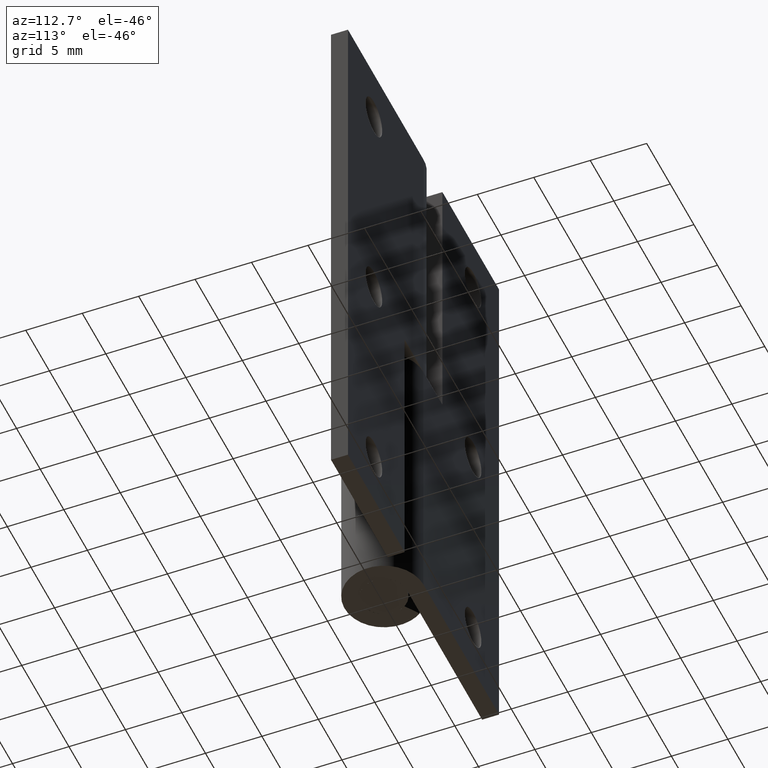
[diagram: clean part render]
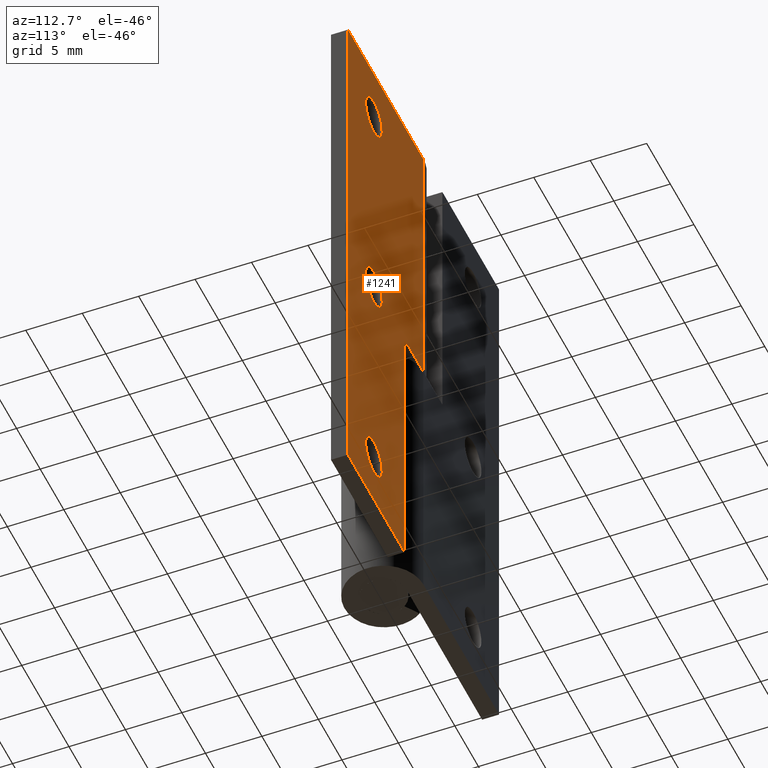
[diagram: same view with one face highlighted and labeled with its STEP entity id]
A machine part, auxiliary view. The second image highlights one B-rep face of the part: STEP entity #1241.
In plain terms, the highlighted face is a freeform B-spline surface patch.
Its self-contained STEP definition (entity closure, byte-faithful):
#366=CARTESIAN_POINT('',(8.755394665949826,3.499999999957235,44.862696582149802));
#367=VERTEX_POINT('',#366);
#373=CARTESIAN_POINT('',(10.500000000000000,3.500000000000000,46.750000000000000));
#374=VERTEX_POINT('',#373);
#375=CARTESIAN_POINT('',(8.755394665949826,3.499999999957235,44.862696582149788));
#376=CARTESIAN_POINT('',(8.750000000000002,3.500000000000000,44.931242312411968));
#377=CARTESIAN_POINT('',(8.750000000000000,3.500000000000000,45.0));
#378=CARTESIAN_POINT('',(8.750000000000000,3.500000000000000,46.749999999999993));
#379=CARTESIAN_POINT('',(10.500000000000000,3.500000000000000,46.750000000000000));
#387=(BOUNDED_CURVE()B_SPLINE_CURVE(2,(#375,#376,#377,#378,#379),.UNSPECIFIED.,.F.,.U.)B_SPLINE_CURVE_WITH_KNOTS((3,2,3),(0.736331300569268,0.750000000000000,1.0),.UNSPECIFIED.)CURVE()GEOMETRIC_REPRESENTATION_ITEM()RATIONAL_B_SPLINE_CURVE((0.969723356039297,0.983986122506957,1.0,0.707106781186547,1.0))REPRESENTATION_ITEM(''));
#388=EDGE_CURVE('',#367,#374,#387,.T.);
#390=CARTESIAN_POINT('',(12.244605334050179,3.499999999957234,45.137303417850198));
#391=VERTEX_POINT('',#390);
#392=CARTESIAN_POINT('',(10.500000000000000,3.500000000000000,46.750000000000000));
#393=CARTESIAN_POINT('',(12.117683359800790,3.500000000000000,46.749999999999986));
#394=CARTESIAN_POINT('',(12.244605334050174,3.499999999957234,45.137303417850205));
#402=(BOUNDED_CURVE()B_SPLINE_CURVE(2,(#392,#393,#394),.UNSPECIFIED.,.F.,.U.)B_SPLINE_CURVE_WITH_KNOTS((3,3),(0.0,0.236331300569268),.UNSPECIFIED.)CURVE()GEOMETRIC_REPRESENTATION_ITEM()RATIONAL_B_SPLINE_CURVE((1.0,0.723120658679590,0.969723356039298))REPRESENTATION_ITEM(''));
#403=EDGE_CURVE('',#374,#391,#402,.T.);
#449=CARTESIAN_POINT('',(10.500000000000000,3.500000000000000,43.250000000000000));
#450=VERTEX_POINT('',#449);
#451=CARTESIAN_POINT('',(12.244605334050183,3.499999999957234,45.137303417850198));
#452=CARTESIAN_POINT('',(12.250000000000000,3.500000000000000,45.068757687588047));
#453=CARTESIAN_POINT('',(12.250000000000000,3.500000000000000,45.0));
#454=CARTESIAN_POINT('',(12.249999999999996,3.500000000000000,43.250000000000000));
#455=CARTESIAN_POINT('',(10.500000000000000,3.500000000000000,43.250000000000000));
#463=(BOUNDED_CURVE()B_SPLINE_CURVE(2,(#451,#452,#453,#454,#455),.UNSPECIFIED.,.F.,.U.)B_SPLINE_CURVE_WITH_KNOTS((3,2,3),(0.236331300569268,0.250000000000000,0.500000000000000),.UNSPECIFIED.)CURVE()GEOMETRIC_REPRESENTATION_ITEM()RATIONAL_B_SPLINE_CURVE((0.969723356039299,0.983986122506957,1.0,0.707106781186547,1.0))REPRESENTATION_ITEM(''));
#464=EDGE_CURVE('',#391,#450,#463,.T.);
#466=CARTESIAN_POINT('',(10.500000000000000,3.500000000000000,43.250000000000000));
#467=CARTESIAN_POINT('',(8.882316640199210,3.500000000000000,43.250000000000000));
#468=CARTESIAN_POINT('',(8.755394665949826,3.499999999957235,44.862696582149795));
#476=(BOUNDED_CURVE()B_SPLINE_CURVE(2,(#466,#467,#468),.UNSPECIFIED.,.F.,.U.)B_SPLINE_CURVE_WITH_KNOTS((3,3),(0.500000000000000,0.736331300569268),.UNSPECIFIED.)CURVE()GEOMETRIC_REPRESENTATION_ITEM()RATIONAL_B_SPLINE_CURVE((1.0,0.723120658679590,0.969723356039298))REPRESENTATION_ITEM(''));
#477=EDGE_CURVE('',#450,#367,#476,.T.);
#548=CARTESIAN_POINT('',(8.755394665949826,3.499999999957235,24.862696582149798));
#549=VERTEX_POINT('',#548);
#555=CARTESIAN_POINT('',(10.500000000000000,3.500000000000000,26.750000000000000));
#556=VERTEX_POINT('',#555);
#557=CARTESIAN_POINT('',(8.755394665949826,3.499999999957235,24.862696582149795));
#558=CARTESIAN_POINT('',(8.750000000000002,3.500000000000000,24.931242312411953));
#559=CARTESIAN_POINT('',(8.750000000000000,3.500000000000000,25.0));
#560=CARTESIAN_POINT('',(8.750000000000000,3.500000000000000,26.750000000000007));
#561=CARTESIAN_POINT('',(10.500000000000000,3.500000000000000,26.750000000000000));
#569=(BOUNDED_CURVE()B_SPLINE_CURVE(2,(#557,#558,#559,#560,#561),.UNSPECIFIED.,.F.,.U.)B_SPLINE_CURVE_WITH_KNOTS((3,2,3),(0.736331300569268,0.750000000000000,1.0),.UNSPECIFIED.)CURVE()GEOMETRIC_REPRESENTATION_ITEM()RATIONAL_B_SPLINE_CURVE((0.969723356039297,0.983986122506957,1.0,0.707106781186547,1.0))REPRESENTATION_ITEM(''));
#570=EDGE_CURVE('',#549,#556,#569,.T.);
#572=CARTESIAN_POINT('',(12.244605334050179,3.499999999957235,25.137303417850209));
#573=VERTEX_POINT('',#572);
#574=CARTESIAN_POINT('',(10.500000000000000,3.500000000000000,26.750000000000000));
#575=CARTESIAN_POINT('',(12.117683359800782,3.500000000000000,26.750000000000004));
#576=CARTESIAN_POINT('',(12.244605334050174,3.499999999957235,25.137303417850209));
#584=(BOUNDED_CURVE()B_SPLINE_CURVE(2,(#574,#575,#576),.UNSPECIFIED.,.F.,.U.)B_SPLINE_CURVE_WITH_KNOTS((3,3),(0.0,0.236331300569267),.UNSPECIFIED.)CURVE()GEOMETRIC_REPRESENTATION_ITEM()RATIONAL_B_SPLINE_CURVE((1.0,0.723120658679591,0.969723356039297))REPRESENTATION_ITEM(''));
#585=EDGE_CURVE('',#556,#573,#584,.T.);
#631=CARTESIAN_POINT('',(10.500000000000000,3.500000000000000,23.250000000000000));
#632=VERTEX_POINT('',#631);
#633=CARTESIAN_POINT('',(12.244605334050176,3.499999999957235,25.137303417850209));
#634=CARTESIAN_POINT('',(12.250000000000005,3.500000000000000,25.068757687588050));
#635=CARTESIAN_POINT('',(12.250000000000000,3.500000000000000,25.0));
#636=CARTESIAN_POINT('',(12.249999999999996,3.500000000000000,23.250000000000004));
#637=CARTESIAN_POINT('',(10.500000000000000,3.500000000000000,23.250000000000000));
#645=(BOUNDED_CURVE()B_SPLINE_CURVE(2,(#633,#634,#635,#636,#637),.UNSPECIFIED.,.F.,.U.)B_SPLINE_CURVE_WITH_KNOTS((3,2,3),(0.236331300569267,0.250000000000000,0.500000000000000),.UNSPECIFIED.)CURVE()GEOMETRIC_REPRESENTATION_ITEM()RATIONAL_B_SPLINE_CURVE((0.969723356039297,0.983986122506956,1.0,0.707106781186547,1.0))REPRESENTATION_ITEM(''));
#646=EDGE_CURVE('',#573,#632,#645,.T.);
#648=CARTESIAN_POINT('',(10.500000000000000,3.500000000000000,23.250000000000000));
#649=CARTESIAN_POINT('',(8.882316640199210,3.500000000000000,23.250000000000007));
#650=CARTESIAN_POINT('',(8.755394665949826,3.499999999957235,24.862696582149798));
#658=(BOUNDED_CURVE()B_SPLINE_CURVE(2,(#648,#649,#650),.UNSPECIFIED.,.F.,.U.)B_SPLINE_CURVE_WITH_KNOTS((3,3),(0.500000000000000,0.736331300569268),.UNSPECIFIED.)CURVE()GEOMETRIC_REPRESENTATION_ITEM()RATIONAL_B_SPLINE_CURVE((1.0,0.723120658679590,0.969723356039298))REPRESENTATION_ITEM(''));
#659=EDGE_CURVE('',#632,#549,#658,.T.);
#730=CARTESIAN_POINT('',(8.755394665949824,3.499999999957235,4.862696582149794));
#731=VERTEX_POINT('',#730);
#737=CARTESIAN_POINT('',(10.500000000000000,3.500000000000000,6.750000000000000));
#738=VERTEX_POINT('',#737);
#739=CARTESIAN_POINT('',(8.755394665949824,3.499999999957236,4.862696582149794));
#740=CARTESIAN_POINT('',(8.750000000000000,3.500000000000000,4.931242312411956));
#741=CARTESIAN_POINT('',(8.750000000000000,3.500000000000000,5.0));
#742=CARTESIAN_POINT('',(8.750000000000000,3.500000000000000,6.750000000000000));
#743=CARTESIAN_POINT('',(10.500000000000000,3.500000000000000,6.750000000000000));
#751=(BOUNDED_CURVE()B_SPLINE_CURVE(2,(#739,#740,#741,#742,#743),.UNSPECIFIED.,.F.,.U.)B_SPLINE_CURVE_WITH_KNOTS((3,2,3),(0.736331300569267,0.750000000000000,1.0),.UNSPECIFIED.)CURVE()GEOMETRIC_REPRESENTATION_ITEM()RATIONAL_B_SPLINE_CURVE((0.969723356039296,0.983986122506956,1.0,0.707106781186547,1.0))REPRESENTATION_ITEM(''));
#752=EDGE_CURVE('',#731,#738,#751,.T.);
#754=CARTESIAN_POINT('',(12.244605334050179,3.499999999957236,5.137303417850206));
#755=VERTEX_POINT('',#754);
#756=CARTESIAN_POINT('',(10.500000000000000,3.500000000000000,6.750000000000000));
#757=CARTESIAN_POINT('',(12.117683359800777,3.500000000000000,6.749999999999999));
#758=CARTESIAN_POINT('',(12.244605334050178,3.499999999957236,5.137303417850206));
#766=(BOUNDED_CURVE()B_SPLINE_CURVE(2,(#756,#757,#758),.UNSPECIFIED.,.F.,.U.)B_SPLINE_CURVE_WITH_KNOTS((3,3),(0.0,0.236331300569267),.UNSPECIFIED.)CURVE()GEOMETRIC_REPRESENTATION_ITEM()RATIONAL_B_SPLINE_CURVE((1.0,0.723120658679591,0.969723356039297))REPRESENTATION_ITEM(''));
#767=EDGE_CURVE('',#738,#755,#766,.T.);
#813=CARTESIAN_POINT('',(10.500000000000000,3.500000000000000,3.250000000000000));
#814=VERTEX_POINT('',#813);
#815=CARTESIAN_POINT('',(12.244605334050179,3.499999999957236,5.137303417850206));
#816=CARTESIAN_POINT('',(12.249999999999996,3.500000000000000,5.068757687588043));
#817=CARTESIAN_POINT('',(12.250000000000000,3.500000000000000,5.0));
#818=CARTESIAN_POINT('',(12.249999999999996,3.500000000000000,3.250000000000000));
#819=CARTESIAN_POINT('',(10.500000000000000,3.500000000000000,3.250000000000000));
#827=(BOUNDED_CURVE()B_SPLINE_CURVE(2,(#815,#816,#817,#818,#819),.UNSPECIFIED.,.F.,.U.)B_SPLINE_CURVE_WITH_KNOTS((3,2,3),(0.236331300569267,0.250000000000000,0.500000000000000),.UNSPECIFIED.)CURVE()GEOMETRIC_REPRESENTATION_ITEM()RATIONAL_B_SPLINE_CURVE((0.969723356039296,0.983986122506956,1.0,0.707106781186547,1.0))REPRESENTATION_ITEM(''));
#828=EDGE_CURVE('',#755,#814,#827,.T.);
#830=CARTESIAN_POINT('',(10.500000000000000,3.500000000000000,3.250000000000000));
#831=CARTESIAN_POINT('',(8.882316640199210,3.500000000000000,3.250000000000001));
#832=CARTESIAN_POINT('',(8.755394665949824,3.499999999957235,4.862696582149795));
#840=(BOUNDED_CURVE()B_SPLINE_CURVE(2,(#830,#831,#832),.UNSPECIFIED.,.F.,.U.)B_SPLINE_CURVE_WITH_KNOTS((3,3),(0.500000000000000,0.736331300569268),.UNSPECIFIED.)CURVE()GEOMETRIC_REPRESENTATION_ITEM()RATIONAL_B_SPLINE_CURVE((1.0,0.723120658679590,0.969723356039298))REPRESENTATION_ITEM(''));
#841=EDGE_CURVE('',#814,#731,#840,.T.);
#874=CARTESIAN_POINT('',(4.0,3.499999999999950,25.0));
#875=VERTEX_POINT('',#874);
#881=CARTESIAN_POINT('',(4.0,3.500000000000000,0.0));
#882=VERTEX_POINT('',#881);
#883=CARTESIAN_POINT('',(4.0,3.499999999999950,25.0));
#884=CARTESIAN_POINT('',(4.0,3.500000000000000,0.0));
#885=QUASI_UNIFORM_CURVE('',1,(#883,#884),.UNSPECIFIED.,.F.,.U.);
#886=EDGE_CURVE('',#875,#882,#885,.T.);
#903=CARTESIAN_POINT('',(0.0,3.499999999999950,25.0));
#904=VERTEX_POINT('',#903);
#924=CARTESIAN_POINT('',(0.0,3.499999999999950,25.0));
#925=CARTESIAN_POINT('',(4.0,3.499999999999950,25.0));
#926=QUASI_UNIFORM_CURVE('',1,(#924,#925),.UNSPECIFIED.,.F.,.U.);
#927=EDGE_CURVE('',#904,#875,#926,.T.);
#973=CARTESIAN_POINT('',(0.0,3.500000000000000,50.0));
#974=VERTEX_POINT('',#973);
#1029=CARTESIAN_POINT('',(16.0,3.500000000000000,50.0));
#1030=VERTEX_POINT('',#1029);
#1036=CARTESIAN_POINT('',(0.0,3.500000000000000,50.0));
#1037=CARTESIAN_POINT('',(16.0,3.500000000000000,50.0));
#1038=QUASI_UNIFORM_CURVE('',1,(#1036,#1037),.UNSPECIFIED.,.F.,.U.);
#1039=EDGE_CURVE('',#974,#1030,#1038,.T.);
#1057=CARTESIAN_POINT('',(16.0,3.500000000000000,0.0));
#1058=VERTEX_POINT('',#1057);
#1064=CARTESIAN_POINT('',(16.0,3.500000000000000,0.0));
#1065=CARTESIAN_POINT('',(16.0,3.500000000000000,50.0));
#1066=QUASI_UNIFORM_CURVE('',1,(#1064,#1065),.UNSPECIFIED.,.F.,.U.);
#1067=EDGE_CURVE('',#1058,#1030,#1066,.T.);
#1083=CARTESIAN_POINT('',(4.0,3.500000000000000,0.0));
#1084=CARTESIAN_POINT('',(16.0,3.500000000000000,0.0));
#1085=QUASI_UNIFORM_CURVE('',1,(#1083,#1084),.UNSPECIFIED.,.F.,.U.);
#1086=EDGE_CURVE('',#882,#1058,#1085,.T.);
#1170=CARTESIAN_POINT('',(0.0,3.499999999999950,25.0));
#1171=CARTESIAN_POINT('',(0.0,3.500000000000000,50.0));
#1172=QUASI_UNIFORM_CURVE('',1,(#1170,#1171),.UNSPECIFIED.,.F.,.U.);
#1173=EDGE_CURVE('',#904,#974,#1172,.T.);
#1210=CARTESIAN_POINT('',(-0.799199968988895,3.500000000000000,52.497499903090286));
#1211=CARTESIAN_POINT('',(-0.799199968988895,3.500000000000000,-2.497501244194806));
#1212=CARTESIAN_POINT('',(16.799200398142339,3.500000000000000,52.497499903090301));
#1213=CARTESIAN_POINT('',(16.799200398142339,3.500000000000000,-2.497501244194806));
#1214=B_SPLINE_SURFACE_WITH_KNOTS('',1,1,((#1210,#1212),(#1211,#1213)),.UNSPECIFIED.,.F.,.F.,.U.,(2,2),(2,2),(0.0,54.995001147285109),(0.0,17.598400367131230),.UNSPECIFIED.);
#1215=ORIENTED_EDGE('',*,*,#927,.F.);
#1216=ORIENTED_EDGE('',*,*,#1173,.T.);
#1217=ORIENTED_EDGE('',*,*,#1039,.T.);
#1218=ORIENTED_EDGE('',*,*,#1067,.F.);
#1219=ORIENTED_EDGE('',*,*,#1086,.F.);
#1220=ORIENTED_EDGE('',*,*,#886,.F.);
#1221=EDGE_LOOP('',(#1215,#1216,#1217,#1218,#1219,#1220));
#1222=FACE_OUTER_BOUND('',#1221,.T.);
#1223=ORIENTED_EDGE('',*,*,#841,.F.);
#1224=ORIENTED_EDGE('',*,*,#828,.F.);
#1225=ORIENTED_EDGE('',*,*,#767,.F.);
#1226=ORIENTED_EDGE('',*,*,#752,.F.);
#1227=EDGE_LOOP('',(#1223,#1224,#1225,#1226));
#1228=FACE_BOUND('',#1227,.T.);
#1229=ORIENTED_EDGE('',*,*,#659,.F.);
#1230=ORIENTED_EDGE('',*,*,#646,.F.);
#1231=ORIENTED_EDGE('',*,*,#585,.F.);
#1232=ORIENTED_EDGE('',*,*,#570,.F.);
#1233=EDGE_LOOP('',(#1229,#1230,#1231,#1232));
#1234=FACE_BOUND('',#1233,.T.);
#1235=ORIENTED_EDGE('',*,*,#477,.F.);
#1236=ORIENTED_EDGE('',*,*,#464,.F.);
#1237=ORIENTED_EDGE('',*,*,#403,.F.);
#1238=ORIENTED_EDGE('',*,*,#388,.F.);
#1239=EDGE_LOOP('',(#1235,#1236,#1237,#1238));
#1240=FACE_BOUND('',#1239,.T.);
#1241=ADVANCED_FACE('',(#1222,#1228,#1234,#1240),#1214,.F.);